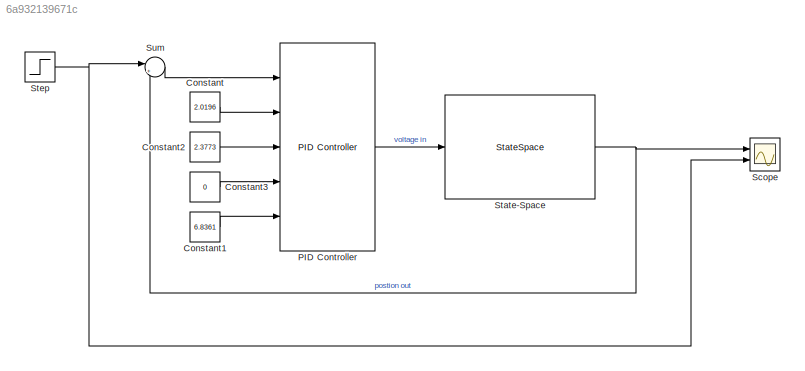
MODEL slx_6a932139671c
KIND model
CONFIG AbsTol = auto
CONFIG EnableMultiTasking = off
CONFIG FixedStep = auto
CONFIG MaxStep = auto
CONFIG MinStep = auto
CONFIG RelTol = 1e-3
CONFIG SampleTimeConstraint = Unconstrained
CONFIG SolverName = VariableStepAuto
CONFIG StartTime = 0.0
CONFIG StopTime = 0.5
WORKSPACE source: mxarray member
WORKSPACE Kp: Simulink.Parameter (value not decoded)
BLOCK [Constant] Constant
  Value = 2.0196
BLOCK [Constant] Constant1
  Value = 6.8361
BLOCK [Constant] Constant2
  Value = 2.3773
BLOCK [Constant] Constant3
  Value = 0
BLOCK [Reference] PID Controller  REF=pid_lib/PID Controller
  Ports = [5, 1]
  SourceBlock = pid_lib/PID Controller
  SourceProductBaseCode = SL
  SourceType = PID 1dof
BLOCK [Scope] Scope
  Floating = off
  NumInputPorts = 2
  Ports = [2]
  ScopeSpecificationString = Simulink.scopes.TimeScopeBlockCfg('CurrentConfiguration', extmgr.ConfigurationSet(extmgr.Configuration('Core','General UI',true),extmgr.Configuration('Core','Source UI',true),extmgr.Configuration('Sources','WiredSimulink',true,'DataLogging',true),extmgr.Configuration('Visuals','Time Domain',true,'SerializedDisplays',{struct('MinYLimReal','-0.13806','MaxYLimReal','1.24251','YLabelReal','','MinYLimM...<+1486ch>
BLOCK [StateSpace] State-Space
  A = [0 1 0; 0 -1.0681 8.3435e3; 0  -9.9636e3 -1.4545e6]
  B = [0; 0; 3.6364e5]
  C = [1 0 0]
  D = 0
  InitialCondition = 0
  Ports = [1, 1]
BLOCK [Step] Step
  SampleTime = 0
  Time = 0.1
BLOCK [Sum] Sum
  Inputs = |+-
  Ports = [2, 1]
LINE Constant1:1 -> PID Controller:5
LINE Constant2:1 -> PID Controller:3
LINE Constant3:1 -> PID Controller:4
LINE Constant:1 -> PID Controller:2
LINE PID Controller:1 -> State-Space:1
NET State-Space:1 -> Scope:1, Sum:2
NET Step:1 -> Scope:2, Sum:1
LINE Sum:1 -> PID Controller:1
note: NET lines group one-source signal fan-out (src -> all destinations, sorted); 1:1 wires keep LINE
